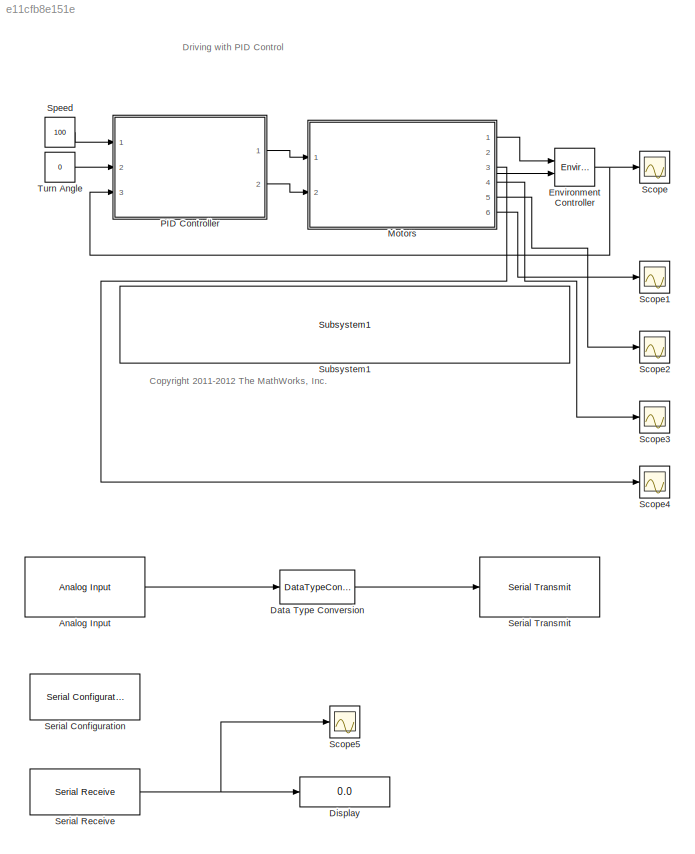
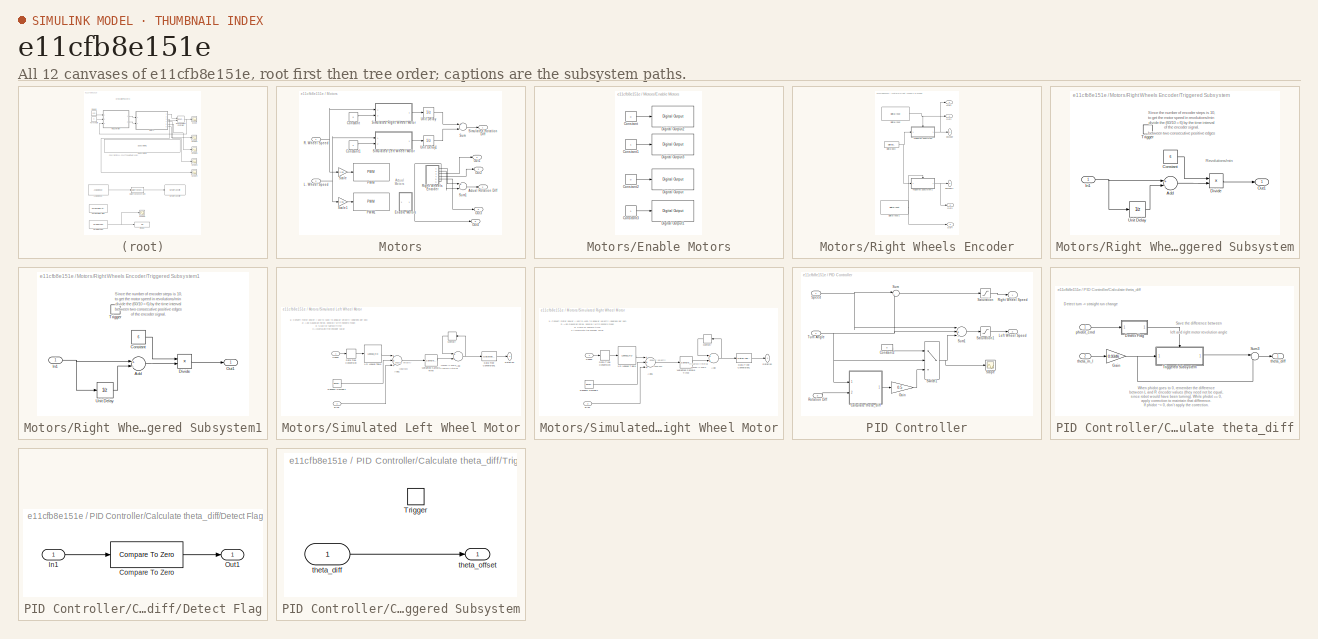
[diagram: thumbnail index - all 12 canvases of the model, root first then tree order]
MODEL slx_e11cfb8e151e
KIND model
CONFIG AbsTol = auto
CONFIG EnableMultiTasking = on
CONFIG FixedStep = auto
CONFIG InitFcn = k_synchronize=2;\nlego_drive_closedloop_InitData.mdl = get_param(bdroot,'Name');\nlego_drive_closedloop_InitData.cs = getActiveConfigSet(lego_drive_closedloop_InitData.mdl);\n\n
CONFIG MaxStep = auto
CONFIG MinStep = auto
CONFIG PreLoadFcn = k_synchronize=2;
CONFIG RelTol = 1e-3
CONFIG SampleTimeConstraint = Unconstrained
CONFIG Solver = ode45
CONFIG SolverName = ode45
CONFIG StartTime = 0.0
CONFIG StopTime = 10.0
BLOCK [Reference] Analog Input  REF=arduinolib/Analog Input
  Ports = [0, 1]
  SourceBlock = arduinolib/Analog Input
  SourceProductBaseCode = ARDUINO
  SourceProductName = Simulink Support Package for Arduino Hardware
  SourceType = Arduino Analog Input
BLOCK [DataTypeConversion] Data Type Conversion
  OutDataTypeStr = uint8
  RndMeth = Floor
  SaturateOnIntegerOverflow = off
BLOCK [Display] Display
  Decimation = 1
  Ports = [1]
BLOCK [Reference] Environment Controller  REF=simulink/Signal
Routing/Environment
Controller
  Ports = [2, 1]
  SourceBlock = simulink/Signal\nRouting/Environment\nController
  SourceProductBaseCode = SL
  SourceProductName = Simulink
  SourceType = Environment Controller
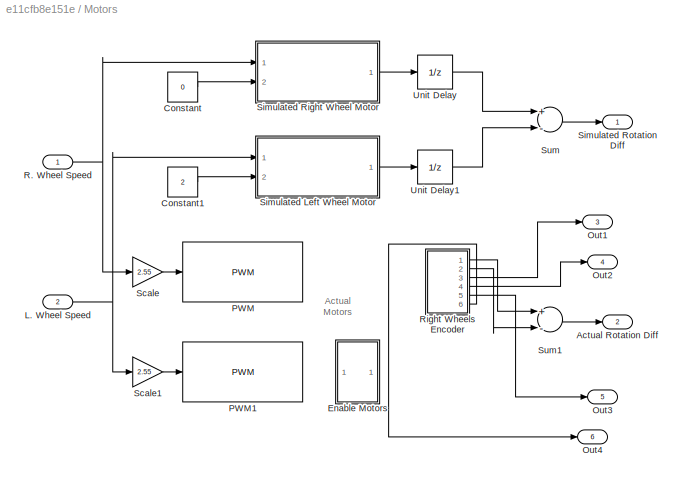
BLOCK [SubSystem] Motors
  MinAlgLoopOccurrences = on
  Ports = [2, 6]
  RequestExecContextInheritance = off
  Variant = off
  VariantControl = DoSim
BLOCK [Outport] Motors/Actual Rotation Diff
  IconDisplay = Port number
  Port = 2
BLOCK [Constant] Motors/Constant
  OutDataTypeStr = single
  Value = 0
BLOCK [Constant] Motors/Constant1
  OutDataTypeStr = single
  Value = 2
BLOCK [SubSystem] Motors/Enable Motors
  Ports = []
  RequestExecContextInheritance = off
  Variant = off
BLOCK [Constant] Motors/Enable Motors/Constant
  OutDataTypeStr = boolean
  Value = 0
BLOCK [Constant] Motors/Enable Motors/Constant1
  OutDataTypeStr = boolean
BLOCK [Constant] Motors/Enable Motors/Constant2
  OutDataTypeStr = boolean
  Value = 0
BLOCK [Constant] Motors/Enable Motors/Constant3
  OutDataTypeStr = boolean
BLOCK [Reference] Motors/Enable Motors/Digital Output  REF=arduinolib/Digital Output
  Ports = [1]
  SourceBlock = arduinolib/Digital Output
  SourceProductBaseCode = ARDUINO
  SourceProductName = Simulink Support Package for Arduino Hardware
  SourceType = Arduino Digital Output
BLOCK [Reference] Motors/Enable Motors/Digital Output1  REF=arduinolib/Digital Output
  Ports = [1]
  SourceBlock = arduinolib/Digital Output
  SourceProductBaseCode = ARDUINO
  SourceProductName = Simulink Support Package for Arduino Hardware
  SourceType = Arduino Digital Output
BLOCK [Reference] Motors/Enable Motors/Digital Output2  REF=arduinolib/Digital Output
  Ports = [1]
  SourceBlock = arduinolib/Digital Output
  SourceProductBaseCode = ARDUINO
  SourceProductName = Simulink Support Package for Arduino Hardware
  SourceType = Arduino Digital Output
BLOCK [Reference] Motors/Enable Motors/Digital Output3  REF=arduinolib/Digital Output
  Ports = [1]
  SourceBlock = arduinolib/Digital Output
  SourceProductBaseCode = ARDUINO
  SourceProductName = Simulink Support Package for Arduino Hardware
  SourceType = Arduino Digital Output
BLOCK [Inport] Motors/L. Wheel Speed
  IconDisplay = Port number
  Port = 2
BLOCK [Outport] Motors/Out1
  IconDisplay = Port number
  Port = 3
BLOCK [Outport] Motors/Out2
  IconDisplay = Port number
  Port = 4
BLOCK [Outport] Motors/Out3
  IconDisplay = Port number
  Port = 5
BLOCK [Outport] Motors/Out4
  IconDisplay = Port number
  Port = 6
BLOCK [Reference] Motors/PWM  REF=arduinolib/PWM
  Ports = [1]
  SourceBlock = arduinolib/PWM
  SourceProductBaseCode = ARDUINO
  SourceProductName = Simulink Support Package for Arduino Hardware
  SourceType = Arduino PWM
BLOCK [Reference] Motors/PWM1  REF=arduinolib/PWM
  Ports = [1]
  SourceBlock = arduinolib/PWM
  SourceProductBaseCode = ARDUINO
  SourceProductName = Simulink Support Package for Arduino Hardware
  SourceType = Arduino PWM
BLOCK [Inport] Motors/R. Wheel Speed
  IconDisplay = Port number
BLOCK [SubSystem] Motors/Right Wheels Encoder
  Ports = [0, 6]
  RequestExecContextInheritance = off
  Variant = off
BLOCK [DigitalClock] Motors/Right Wheels Encoder/Digital Clock
  SampleTime = -1
BLOCK [Reference] Motors/Right Wheels Encoder/Digital Input  REF=arduinolib/Digital Input
  Ports = [0, 1]
  SourceBlock = arduinolib/Digital Input
  SourceProductBaseCode = ARDUINO
  SourceProductName = Simulink Support Package for Arduino Hardware
  SourceType = Arduino Digital Input
BLOCK [Reference] Motors/Right Wheels Encoder/Digital Input1  REF=arduinolib/Digital Input
  Ports = [0, 1]
  SourceBlock = arduinolib/Digital Input
  SourceProductBaseCode = ARDUINO
  SourceProductName = Simulink Support Package for Arduino Hardware
  SourceType = Arduino Digital Input
BLOCK [Outport] Motors/Right Wheels Encoder/Encoder
  IconDisplay = Port number
BLOCK [Outport] Motors/Right Wheels Encoder/Encoder1
  IconDisplay = Port number
  Port = 2
BLOCK [Outport] Motors/Right Wheels Encoder/Out1
  IconDisplay = Port number
  Port = 3
BLOCK [Outport] Motors/Right Wheels Encoder/Out2
  IconDisplay = Port number
  Port = 4
BLOCK [Outport] Motors/Right Wheels Encoder/Out3
  IconDisplay = Port number
  Port = 5
BLOCK [Outport] Motors/Right Wheels Encoder/Out4
  IconDisplay = Port number
  Port = 6
BLOCK [SubSystem] Motors/Right Wheels Encoder/Triggered Subsystem
  Ports = [1, 1, 0, 1]
  RequestExecContextInheritance = off
  TreatAsAtomicUnit = on
  Variant = off
BLOCK [Sum] Motors/Right Wheels Encoder/Triggered Subsystem/Add
  InputSameDT = off
  Inputs = +-
  OutDataTypeStr = Inherit: Inherit via internal rule
  Ports = [2, 1]
  SaturateOnIntegerOverflow = off
BLOCK [Constant] Motors/Right Wheels Encoder/Triggered Subsystem/Constant
  Value = 6
BLOCK [Product] Motors/Right Wheels Encoder/Triggered Subsystem/Divide
  InputSameDT = off
  Inputs = */
  OutDataTypeStr = int32
  Ports = [2, 1]
  RndMeth = Floor
  SaturateOnIntegerOverflow = off
BLOCK [Inport] Motors/Right Wheels Encoder/Triggered Subsystem/In1
  IconDisplay = Port number
BLOCK [Outport] Motors/Right Wheels Encoder/Triggered Subsystem/Out1
  IconDisplay = Port number
BLOCK [TriggerPort] Motors/Right Wheels Encoder/Triggered Subsystem/Trigger
  Ports = []
  StatesWhenEnabling = held
  VariantControl = Variant
BLOCK [UnitDelay] Motors/Right Wheels Encoder/Triggered Subsystem/Unit Delay
  InputProcessing = Elements as channels (sample based)
  SampleTime = -1
BLOCK [SubSystem] Motors/Right Wheels Encoder/Triggered Subsystem1
  Ports = [1, 1, 0, 1]
  RequestExecContextInheritance = off
  TreatAsAtomicUnit = on
  Variant = off
BLOCK [Sum] Motors/Right Wheels Encoder/Triggered Subsystem1/Add
  InputSameDT = off
  Inputs = +-
  OutDataTypeStr = Inherit: Inherit via internal rule
  Ports = [2, 1]
  SaturateOnIntegerOverflow = off
BLOCK [Constant] Motors/Right Wheels Encoder/Triggered Subsystem1/Constant
  Value = 6
BLOCK [Product] Motors/Right Wheels Encoder/Triggered Subsystem1/Divide
  InputSameDT = off
  Inputs = */
  OutDataTypeStr = int32
  Ports = [2, 1]
  RndMeth = Floor
  SaturateOnIntegerOverflow = off
BLOCK [Inport] Motors/Right Wheels Encoder/Triggered Subsystem1/In1
  IconDisplay = Port number
BLOCK [Outport] Motors/Right Wheels Encoder/Triggered Subsystem1/Out1
  IconDisplay = Port number
BLOCK [TriggerPort] Motors/Right Wheels Encoder/Triggered Subsystem1/Trigger
  Ports = []
  StatesWhenEnabling = held
  VariantControl = Variant
BLOCK [UnitDelay] Motors/Right Wheels Encoder/Triggered Subsystem1/Unit Delay
  InputProcessing = Elements as channels (sample based)
  SampleTime = -1
BLOCK [Gain] Motors/Scale
  Gain = 2.55
  OutDataTypeStr = Inherit: Inherit via internal rule
  ParamDataTypeStr = Inherit: Inherit via internal rule
  SaturateOnIntegerOverflow = off
BLOCK [Gain] Motors/Scale1
  Gain = 2.55
  OutDataTypeStr = Inherit: Inherit via internal rule
  ParamDataTypeStr = Inherit: Inherit via internal rule
  SaturateOnIntegerOverflow = off
BLOCK [SubSystem] Motors/Simulated Left Wheel Motor
  Ports = [2, 1]
  RequestExecContextInheritance = off
  Variant = off
BLOCK [Lookup_n-D] Motors/Simulated Left Wheel Motor/1-D Lookup Table
  BreakpointsForDimension1 = [-100 0 100]
  ExtrapMethod = Clip
  NumberOfTableDimensions = 1
  Ports = [1, 1]
  RndMeth = Simplest
  Table = [-360 0 360]
  UseLastTableValue = on
BLOCK [Sum] Motors/Simulated Left Wheel Motor/Add
  AccumDataTypeStr = single
  InputSameDT = off
  OutDataTypeStr = single
  Ports = [2, 1]
  SaturateOnIntegerOverflow = off
BLOCK [Sum] Motors/Simulated Left Wheel Motor/Add1
  InputSameDT = off
  Inputs = +++
  OutDataTypeStr = single
  Ports = [3, 1]
  SaturateOnIntegerOverflow = off
BLOCK [Inport] Motors/Simulated Left Wheel Motor/Bias
  IconDisplay = Port number
  Port = 2
BLOCK [DataTypeConversion] Motors/Simulated Left Wheel Motor/Data Type Conversion
  OutDataTypeStr = double
  RndMeth = Round
  SaturateOnIntegerOverflow = off
BLOCK [DataTypeConversion] Motors/Simulated Left Wheel Motor/Data Type Conversion1
  OutDataTypeStr = int32
  RndMeth = Floor
  SaturateOnIntegerOverflow = off
BLOCK [Memory] Motors/Simulated Left Wheel Motor/Memory
  InheritSampleTime = on
  LinearizeAsDelay = on
BLOCK [RandomNumber] Motors/Simulated Left Wheel Motor/Random Number1
  Seed = randi(1000)
  Variance = 5
BLOCK [Outport] Motors/Simulated Left Wheel Motor/Rotation
  IconDisplay = Port number
BLOCK [Inport] Motors/Simulated Left Wheel Motor/Speed
  IconDisplay = Port number
BLOCK [SampleTimeMath] Motors/Simulated Left Wheel Motor/Weighted Sample Time
  TsampMathOp = *
BLOCK [SubSystem] Motors/Simulated Right Wheel Motor
  Ports = [2, 1]
  RequestExecContextInheritance = off
  Variant = off
BLOCK [Lookup_n-D] Motors/Simulated Right Wheel Motor/1-D Lookup Table
  BreakpointsForDimension1 = [-100 0 100]
  ExtrapMethod = Clip
  NumberOfTableDimensions = 1
  Ports = [1, 1]
  RndMeth = Simplest
  Table = [-360 0 360]
  UseLastTableValue = on
BLOCK [Sum] Motors/Simulated Right Wheel Motor/Add
  InputSameDT = off
  OutDataTypeStr = single
  Ports = [2, 1]
  SaturateOnIntegerOverflow = off
BLOCK [Sum] Motors/Simulated Right Wheel Motor/Add1
  InputSameDT = off
  Inputs = +++
  OutDataTypeStr = single
  Ports = [3, 1]
  SaturateOnIntegerOverflow = off
BLOCK [Inport] Motors/Simulated Right Wheel Motor/Bias
  IconDisplay = Port number
  Port = 2
BLOCK [DataTypeConversion] Motors/Simulated Right Wheel Motor/Data Type Conversion
  OutDataTypeStr = double
  RndMeth = Round
  SaturateOnIntegerOverflow = off
BLOCK [DataTypeConversion] Motors/Simulated Right Wheel Motor/Data Type Conversion1
  OutDataTypeStr = int32
  RndMeth = Floor
  SaturateOnIntegerOverflow = off
BLOCK [Memory] Motors/Simulated Right Wheel Motor/Memory
  InheritSampleTime = on
  LinearizeAsDelay = on
BLOCK [RandomNumber] Motors/Simulated Right Wheel Motor/Random Number1
  Seed = randi(1000)
  Variance = 5
BLOCK [Outport] Motors/Simulated Right Wheel Motor/Rotation
  IconDisplay = Port number
BLOCK [Inport] Motors/Simulated Right Wheel Motor/Speed
  IconDisplay = Port number
BLOCK [SampleTimeMath] Motors/Simulated Right Wheel Motor/Weighted Sample Time
  TsampMathOp = *
BLOCK [Outport] Motors/Simulated Rotation Diff
  IconDisplay = Port number
BLOCK [Sum] Motors/Sum
  InputSameDT = off
  Inputs = +-
  Ports = [2, 1]
  SaturateOnIntegerOverflow = off
BLOCK [Sum] Motors/Sum1
  InputSameDT = off
  Inputs = +-
  Ports = [2, 1]
  SaturateOnIntegerOverflow = off
BLOCK [UnitDelay] Motors/Unit Delay
  InputProcessing = Elements as channels (sample based)
  SampleTime = -1
BLOCK [UnitDelay] Motors/Unit Delay1
  InputProcessing = Elements as channels (sample based)
  SampleTime = -1
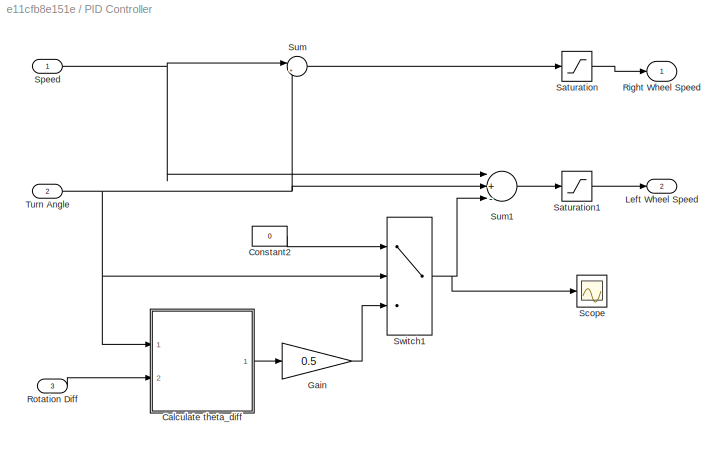
BLOCK [SubSystem] PID Controller
  Ports = [3, 2]
  RequestExecContextInheritance = off
  Variant = off
BLOCK [SubSystem] PID Controller/Calculate theta_diff
  Ports = [2, 1]
  RequestExecContextInheritance = off
  Variant = off
BLOCK [SubSystem] PID Controller/Calculate theta_diff/Detect Flag
  Ports = [1, 1]
  RequestExecContextInheritance = off
  Variant = off
BLOCK [Reference] PID Controller/Calculate theta_diff/Detect Flag/Compare To Zero  REF=simulink/Logic and Bit
Operations/Compare
To Zero
  Ports = [1, 1]
  SourceBlock = simulink/Logic and Bit\nOperations/Compare\nTo Zero
  SourceProductBaseCode = SL
  SourceProductName = Simulink
  SourceType = Compare To Zero
BLOCK [Inport] PID Controller/Calculate theta_diff/Detect Flag/In1
  IconDisplay = Port number
BLOCK [Outport] PID Controller/Calculate theta_diff/Detect Flag/Out1
  IconDisplay = Port number
BLOCK [Gain] PID Controller/Calculate theta_diff/Gain
  Gain = 0.9346
  OutDataTypeStr = Inherit: Inherit via internal rule
  ParamDataTypeStr = single
  SaturateOnIntegerOverflow = off
BLOCK [Sum] PID Controller/Calculate theta_diff/Sum3
  IconShape = round
  InputSameDT = off
  Inputs = |-+
  Ports = [2, 1]
  SaturateOnIntegerOverflow = off
BLOCK [SubSystem] PID Controller/Calculate theta_diff/Triggered Subsystem
  Ports = [1, 1, 0, 1]
  RequestExecContextInheritance = off
  TreatAsAtomicUnit = on
  Variant = off
BLOCK [TriggerPort] PID Controller/Calculate theta_diff/Triggered Subsystem/Trigger
  Ports = []
  StatesWhenEnabling = held
  TriggerType = falling
  VariantControl = Variant
BLOCK [Inport] PID Controller/Calculate theta_diff/Triggered Subsystem/theta_diff
  IconDisplay = Port number
  LatchByDelayingOutsideSignal = on
BLOCK [Outport] PID Controller/Calculate theta_diff/Triggered Subsystem/theta_offset
  IconDisplay = Port number
BLOCK [Inport] PID Controller/Calculate theta_diff/phidot_cmd
  IconDisplay = Port number
BLOCK [Outport] PID Controller/Calculate theta_diff/theta_diff
  IconDisplay = Port number
BLOCK [Inport] PID Controller/Calculate theta_diff/theta_m_l
  IconDisplay = Port number
  Port = 2
BLOCK [Constant] PID Controller/Constant2
  OutDataTypeStr = single
  Value = 0
BLOCK [Gain] PID Controller/Gain
  Gain = 0.5
  OutDataTypeStr = Inherit: Inherit via internal rule
  ParamDataTypeStr = Inherit: Inherit via internal rule
  SaturateOnIntegerOverflow = off
BLOCK [Outport] PID Controller/Left Wheel Speed
  IconDisplay = Port number
  Port = 2
BLOCK [Outport] PID Controller/Right Wheel Speed
  IconDisplay = Port number
BLOCK [Inport] PID Controller/Rotation Diff
  IconDisplay = Port number
  Port = 3
BLOCK [Saturate] PID Controller/Saturation
  AttributesFormatString = max = %<UpperLimit>\nmin = %<LowerLimit>
  InputPortMap = u0
  LowerLimit = 0
  Ports = [1, 1]
  UpperLimit = 100
BLOCK [Saturate] PID Controller/Saturation1
  AttributesFormatString = max = %<UpperLimit>\nmin = %<LowerLimit>
  InputPortMap = u0
  LowerLimit = 0
  Ports = [1, 1]
  UpperLimit = 100
BLOCK [Scope] PID Controller/Scope
  NumInputPorts = 1
  Ports = [1]
  ScopeSpecificationString = C++SS(StrPVP('Location','[2627, 771, 2990, 1024]'),StrPVP('Open','off'),MxPVP('AxesTitles',53,'struct(''axes1'',''Encoder Output Mismatch'')'),MxPVP('ScopeGraphics',56,'struct(''FigureColor'',''[0.501960784313725 0.501960784313725 0.501960784313725]'',''AxesColor'',''[0 0 0]'',''AxesTickColor'',''[1 1 1]'',''LineColors'',''[1 1 0;1 0 1;0 1 1;1 0 0;0 1 0;0 0 1]'',''LineStyles'',''-|-|-|-|-|-'',''Li...<+391ch>
BLOCK [Inport] PID Controller/Speed
  IconDisplay = Port number
BLOCK [Sum] PID Controller/Sum
  IconShape = round
  InputSameDT = off
  Inputs = |++
  Ports = [2, 1]
  SaturateOnIntegerOverflow = off
BLOCK [Sum] PID Controller/Sum1
  InputSameDT = off
  Inputs = |+-+
  Ports = [3, 1]
  SaturateOnIntegerOverflow = off
BLOCK [Switch] PID Controller/Switch1
  Criteria = u2 ~= 0
  InputSameDT = off
  SaturateOnIntegerOverflow = off
BLOCK [Inport] PID Controller/Turn Angle
  IconDisplay = Port number
  Port = 2
BLOCK [Scope] Scope
  NumInputPorts = 1
  Ports = [1]
  ScopeSpecificationString = C++SS(StrPVP('Location','[2630, 428, 2993, 681]'),StrPVP('Open','off'),MxPVP('AxesTitles',53,'struct(''axes1'',''Encoder Output Mismatch'')'),MxPVP('ScopeGraphics',56,'struct(''FigureColor'',''[0.501960784313725 0.501960784313725 0.501960784313725]'',''AxesColor'',''[0 0 0]'',''AxesTickColor'',''[1 1 1]'',''LineColors'',''[1 1 0;1 0 1;0 1 1;1 0 0;0 1 0;0 0 1]'',''LineStyles'',''-|-|-|-|-|-'',''Lin...<+357ch>
BLOCK [Scope] Scope1
  NumInputPorts = 1
  Ports = [1]
  ScopeSpecificationString = C++SS(StrPVP('Location','[188, 365, 512, 604]'),StrPVP('Open','off'),MxPVP('AxesTitles',53,'struct(''axes1'',''%<SignalLabel>'')'),MxPVP('ScopeGraphics',56,'struct(''FigureColor'',''[0.5 0.5 0.5]'',''AxesColor'',''[0 0 0]'',''AxesTickColor'',''[1 1 1]'',''LineColors'',''[1 1 0;1 0 1;0 1 1;1 0 0;0 1 0;0 0 1]'',''LineStyles'',''-|-|-|-|-|-'',''LineWidths'',''[0.5 0.5 0.5 0.5 0.5 0.5]'',''MarkerStyle...<+251ch>  <repeated x3 — deduplicated; at blocks: Scope1, Scope2, Scope4>
BLOCK [Scope] Scope2
  NumInputPorts = 1
  Ports = [1]
BLOCK [Scope] Scope3
  NumInputPorts = 1
  Ports = [1]
  ScopeSpecificationString = C++SS(StrPVP('Location','[530, 363, 854, 602]'),StrPVP('Open','off'),MxPVP('AxesTitles',53,'struct(''axes1'',''%<SignalLabel>'')'),MxPVP('ScopeGraphics',56,'struct(''FigureColor'',''[0.5 0.5 0.5]'',''AxesColor'',''[0 0 0]'',''AxesTickColor'',''[1 1 1]'',''LineColors'',''[1 1 0;1 0 1;0 1 1;1 0 0;0 1 0;0 0 1]'',''LineStyles'',''-|-|-|-|-|-'',''LineWidths'',''[0.5 0.5 0.5 0.5 0.5 0.5]'',''MarkerStyle...<+251ch>
BLOCK [Scope] Scope4
  NumInputPorts = 1
  Ports = [1]
BLOCK [Scope] Scope5
  NumInputPorts = 1
  Ports = [1]
  ScopeSpecificationString = C++SS(StrPVP('Location','[188, 365, 512, 604]'),StrPVP('Open','off'),StrPVP('TickLabels','on'),MxPVP('AxesTitles',53,'struct(''axes1'',''%<SignalLabel>'')'),MxPVP('ScopeGraphics',56,'struct(''FigureColor'',''[0.5 0.5 0.5]'',''AxesColor'',''[0 0 0]'',''AxesTickColor'',''[1 1 1]'',''LineColors'',''[1 1 0;1 0 1;0 1 1;1 0 0;0 1 0;0 0 1]'',''LineStyles'',''-|-|-|-|-|-'',''LineWidths'',''[0.5 0.5 0.5 0....<+277ch>
BLOCK [Reference] Serial Configuration  REF=instrumentlib/Serial Configuration
  Ports = []
  Priority = -200000
  SourceBlock = instrumentlib/Serial Configuration
  SourceProductBaseCode = IC
  SourceProductName = Instrument Control Toolbox
  SourceType = Serial Configuration
BLOCK [Reference] Serial Receive  REF=instrumentlib/Serial Receive
  Ports = [0, 1]
  SourceBlock = instrumentlib/Serial Receive
  SourceProductBaseCode = IC
  SourceProductName = Instrument Control Toolbox
  SourceType = Serial Receive
BLOCK [Reference] Serial Transmit  REF=arduinolib/Serial Transmit
  Ports = [1]
  SourceBlock = arduinolib/Serial Transmit
  SourceProductBaseCode = ARDUINO
  SourceProductName = Simulink Support Package for Arduino Hardware
  SourceType = Arduino Serial Transmit
BLOCK [Constant] Speed
  OutDataTypeStr = single
  OutMax = 100
  OutMin = 0
  SampleTime = 0.001
  Value = 100
BLOCK [Reference] Subsystem1  REF=realtime_examples_misc/Subsystem1
  Ports = []
  SourceBlock = realtime_examples_misc/Subsystem1
BLOCK [Constant] Turn Angle
  OutDataTypeStr = single
  OutMax = 20
  OutMin = -20
  SampleTime = 0.001
  Value = 0
ANNOTATION (root): <copyright redacted>
ANNOTATION (root): Driving with PID Control
ANNOTATION Motors: Actual Motors
ANNOTATION Motors/Right Wheels Encoder/Triggered Subsystem: Revolutions/min
ANNOTATION Motors/Right Wheels Encoder/Triggered Subsystem: Since the number of encoder steps is 10, to get the motor speed in revolutions/min divide the (60/10 = 6) by the time interval between two consecutive positive edges of the encoder signal.
ANNOTATION Motors/Right Wheels Encoder/Triggered Subsystem1: Since the number of encoder steps is 10, to get the motor speed in revolutions/min divide the (60/10 = 6) by the time interval between two consecutive positive edges of the encoder signal.
ANNOTATION Motors/Simulated Left Wheel Motor: 1) Convert motor power (-100 to +100) to angular velocity (degrees per sec) 2) Add Gaussian noise, possibly with nonzero mean 3) Scale by sample time 3 Accumulate the encoder value
ANNOTATION Motors/Simulated Left Wheel Motor: angular velocity [deg/sec]
ANNOTATION Motors/Simulated Left Wheel Motor: change in angle in sample interval
ANNOTATION Motors/Simulated Right Wheel Motor: 1) Convert motor power (-100 to +100) to angular velocity (degrees per sec) 2) Add Gaussian noise, possibly with nonzero mean 3) Scale by sample time 3 Accumulate the encoder value
ANNOTATION Motors/Simulated Right Wheel Motor: angular velocity [deg/sec]
ANNOTATION Motors/Simulated Right Wheel Motor: change in angle in sample interval
ANNOTATION PID Controller/Calculate theta_diff: Detect turn -> straight run change
ANNOTATION PID Controller/Calculate theta_diff: Save the difference between left and right motor revolution angle
ANNOTATION PID Controller/Calculate theta_diff: When phidot goes to 0, remember the difference between L and R encoder values (they need not be equal, since robot would have been turning). While phidot == 0, apply correction to maintain that difference. If phidot ~= 0, don't apply the correction.
LINE Analog Input:1 -> Data Type Conversion:1
LINE Data Type Conversion:1 -> Serial Transmit:1
NET Environment Controller:1 -> PID Controller:3, Scope:1
LINE Motors/Constant1:1 -> Motors/Simulated Left Wheel Motor:2
LINE Motors/Constant:1 -> Motors/Simulated Right Wheel Motor:2
LINE Motors/Enable Motors/Constant1:1 -> Motors/Enable Motors/Digital Output3:1
LINE Motors/Enable Motors/Constant2:1 -> Motors/Enable Motors/Digital Output:1
LINE Motors/Enable Motors/Constant3:1 -> Motors/Enable Motors/Digital Output1:1
LINE Motors/Enable Motors/Constant:1 -> Motors/Enable Motors/Digital Output2:1
NET Motors/L. Wheel Speed:1 -> Motors/Scale1:1, Motors/Simulated Left Wheel Motor:1
NET Motors/R. Wheel Speed:1 -> Motors/Scale:1, Motors/Simulated Right Wheel Motor:1
NET Motors/Right Wheels Encoder/Digital Clock:1 -> Motors/Right Wheels Encoder/Triggered Subsystem1:1, Motors/Right Wheels Encoder/Triggered Subsystem:1
NET Motors/Right Wheels Encoder/Digital Input1:1 -> Motors/Right Wheels Encoder/Out4:1, Motors/Right Wheels Encoder/Triggered Subsystem1:trigger
NET Motors/Right Wheels Encoder/Digital Input:1 -> Motors/Right Wheels Encoder/Out2:1, Motors/Right Wheels Encoder/Triggered Subsystem:trigger
LINE Motors/Right Wheels Encoder/Triggered Subsystem/Add:1 -> Motors/Right Wheels Encoder/Triggered Subsystem/Divide:2
LINE Motors/Right Wheels Encoder/Triggered Subsystem/Constant:1 -> Motors/Right Wheels Encoder/Triggered Subsystem/Divide:1
LINE Motors/Right Wheels Encoder/Triggered Subsystem/Divide:1 -> Motors/Right Wheels Encoder/Triggered Subsystem/Out1:1
NET Motors/Right Wheels Encoder/Triggered Subsystem/In1:1 -> Motors/Right Wheels Encoder/Triggered Subsystem/Add:1, Motors/Right Wheels Encoder/Triggered Subsystem/Unit Delay:1
LINE Motors/Right Wheels Encoder/Triggered Subsystem/Unit Delay:1 -> Motors/Right Wheels Encoder/Triggered Subsystem/Add:2
LINE Motors/Right Wheels Encoder/Triggered Subsystem1/Add:1 -> Motors/Right Wheels Encoder/Triggered Subsystem1/Divide:2
LINE Motors/Right Wheels Encoder/Triggered Subsystem1/Constant:1 -> Motors/Right Wheels Encoder/Triggered Subsystem1/Divide:1
LINE Motors/Right Wheels Encoder/Triggered Subsystem1/Divide:1 -> Motors/Right Wheels Encoder/Triggered Subsystem1/Out1:1
NET Motors/Right Wheels Encoder/Triggered Subsystem1/In1:1 -> Motors/Right Wheels Encoder/Triggered Subsystem1/Add:1, Motors/Right Wheels Encoder/Triggered Subsystem1/Unit Delay:1
LINE Motors/Right Wheels Encoder/Triggered Subsystem1/Unit Delay:1 -> Motors/Right Wheels Encoder/Triggered Subsystem1/Add:2
NET Motors/Right Wheels Encoder/Triggered Subsystem1:1 -> Motors/Right Wheels Encoder/Encoder1:1, Motors/Right Wheels Encoder/Out3:1
NET Motors/Right Wheels Encoder/Triggered Subsystem:1 -> Motors/Right Wheels Encoder/Encoder:1, Motors/Right Wheels Encoder/Out1:1
LINE Motors/Right Wheels Encoder:1 -> Motors/Sum1:1
LINE Motors/Right Wheels Encoder:2 -> Motors/Sum1:2
LINE Motors/Right Wheels Encoder:3 -> Motors/Out1:1
LINE Motors/Right Wheels Encoder:4 -> Motors/Out2:1
LINE Motors/Right Wheels Encoder:5 -> Motors/Out3:1
LINE Motors/Right Wheels Encoder:6 -> Motors/Out4:1
LINE Motors/Scale1:1 -> Motors/PWM1:1
LINE Motors/Scale:1 -> Motors/PWM:1
LINE Motors/Simulated Left Wheel Motor/1-D Lookup Table:1 -> Motors/Simulated Left Wheel Motor/Add1:1
LINE Motors/Simulated Left Wheel Motor/Add1:1 -> Motors/Simulated Left Wheel Motor/Weighted Sample Time:1
NET Motors/Simulated Left Wheel Motor/Add:1 -> Motors/Simulated Left Wheel Motor/Data Type Conversion1:1, Motors/Simulated Left Wheel Motor/Memory:1
LINE Motors/Simulated Left Wheel Motor/Bias:1 -> Motors/Simulated Left Wheel Motor/Add1:3
LINE Motors/Simulated Left Wheel Motor/Data Type Conversion1:1 -> Motors/Simulated Left Wheel Motor/Rotation:1
LINE Motors/Simulated Left Wheel Motor/Data Type Conversion:1 -> Motors/Simulated Left Wheel Motor/1-D Lookup Table:1
LINE Motors/Simulated Left Wheel Motor/Memory:1 -> Motors/Simulated Left Wheel Motor/Add:1
LINE Motors/Simulated Left Wheel Motor/Random Number1:1 -> Motors/Simulated Left Wheel Motor/Add1:2
LINE Motors/Simulated Left Wheel Motor/Speed:1 -> Motors/Simulated Left Wheel Motor/Data Type Conversion:1
LINE Motors/Simulated Left Wheel Motor/Weighted Sample Time:1 -> Motors/Simulated Left Wheel Motor/Add:2
LINE Motors/Simulated Left Wheel Motor:1 -> Motors/Unit Delay1:1
LINE Motors/Simulated Right Wheel Motor/1-D Lookup Table:1 -> Motors/Simulated Right Wheel Motor/Add1:1
LINE Motors/Simulated Right Wheel Motor/Add1:1 -> Motors/Simulated Right Wheel Motor/Weighted Sample Time:1
NET Motors/Simulated Right Wheel Motor/Add:1 -> Motors/Simulated Right Wheel Motor/Data Type Conversion1:1, Motors/Simulated Right Wheel Motor/Memory:1
LINE Motors/Simulated Right Wheel Motor/Bias:1 -> Motors/Simulated Right Wheel Motor/Add1:3
LINE Motors/Simulated Right Wheel Motor/Data Type Conversion1:1 -> Motors/Simulated Right Wheel Motor/Rotation:1
LINE Motors/Simulated Right Wheel Motor/Data Type Conversion:1 -> Motors/Simulated Right Wheel Motor/1-D Lookup Table:1
LINE Motors/Simulated Right Wheel Motor/Memory:1 -> Motors/Simulated Right Wheel Motor/Add:1
LINE Motors/Simulated Right Wheel Motor/Random Number1:1 -> Motors/Simulated Right Wheel Motor/Add1:2
LINE Motors/Simulated Right Wheel Motor/Speed:1 -> Motors/Simulated Right Wheel Motor/Data Type Conversion:1
LINE Motors/Simulated Right Wheel Motor/Weighted Sample Time:1 -> Motors/Simulated Right Wheel Motor/Add:2
LINE Motors/Simulated Right Wheel Motor:1 -> Motors/Unit Delay:1
LINE Motors/Sum1:1 -> Motors/Actual Rotation Diff:1
LINE Motors/Sum:1 -> Motors/Simulated Rotation Diff:1
LINE Motors/Unit Delay1:1 -> Motors/Sum:2
LINE Motors/Unit Delay:1 -> Motors/Sum:1
LINE Motors:1 -> Environment Controller:1
LINE Motors:2 -> Environment Controller:2
LINE Motors:3 -> Scope4:1
LINE Motors:4 -> Scope3:1
LINE Motors:5 -> Scope2:1
LINE Motors:6 -> Scope1:1
LINE PID Controller/Calculate theta_diff/Detect Flag/Compare To Zero:1 -> PID Controller/Calculate theta_diff/Detect Flag/Out1:1
LINE PID Controller/Calculate theta_diff/Detect Flag/In1:1 -> PID Controller/Calculate theta_diff/Detect Flag/Compare To Zero:1
LINE PID Controller/Calculate theta_diff/Detect Flag:1 -> PID Controller/Calculate theta_diff/Triggered Subsystem:trigger
NET PID Controller/Calculate theta_diff/Gain:1 -> PID Controller/Calculate theta_diff/Sum3:2, PID Controller/Calculate theta_diff/Triggered Subsystem:1
LINE PID Controller/Calculate theta_diff/Sum3:1 -> PID Controller/Calculate theta_diff/theta_diff:1
LINE PID Controller/Calculate theta_diff/Triggered Subsystem/theta_diff:1 -> PID Controller/Calculate theta_diff/Triggered Subsystem/theta_offset:1
LINE PID Controller/Calculate theta_diff/Triggered Subsystem:1 -> PID Controller/Calculate theta_diff/Sum3:1
LINE PID Controller/Calculate theta_diff/phidot_cmd:1 -> PID Controller/Calculate theta_diff/Detect Flag:1
LINE PID Controller/Calculate theta_diff/theta_m_l:1 -> PID Controller/Calculate theta_diff/Gain:1
LINE PID Controller/Calculate theta_diff:1 -> PID Controller/Gain:1
LINE PID Controller/Constant2:1 -> PID Controller/Switch1:1
LINE PID Controller/Gain:1 -> PID Controller/Switch1:3
LINE PID Controller/Rotation Diff:1 -> PID Controller/Calculate theta_diff:2
LINE PID Controller/Saturation1:1 -> PID Controller/Left Wheel Speed:1
LINE PID Controller/Saturation:1 -> PID Controller/Right Wheel Speed:1
NET PID Controller/Speed:1 -> PID Controller/Sum1:1, PID Controller/Sum:1
LINE PID Controller/Sum1:1 -> PID Controller/Saturation1:1
LINE PID Controller/Sum:1 -> PID Controller/Saturation:1
NET PID Controller/Switch1:1 -> PID Controller/Scope:1, PID Controller/Sum1:3
NET PID Controller/Turn Angle:1 -> PID Controller/Calculate theta_diff:1, PID Controller/Sum1:2, PID Controller/Sum:2, PID Controller/Switch1:2
LINE PID Controller:1 -> Motors:1
LINE PID Controller:2 -> Motors:2
NET Serial Receive:1 -> Display:1, Scope5:1
LINE Speed:1 -> PID Controller:1
LINE Turn Angle:1 -> PID Controller:2
note: NET lines group one-source signal fan-out (src -> all destinations, sorted); 1:1 wires keep LINE
